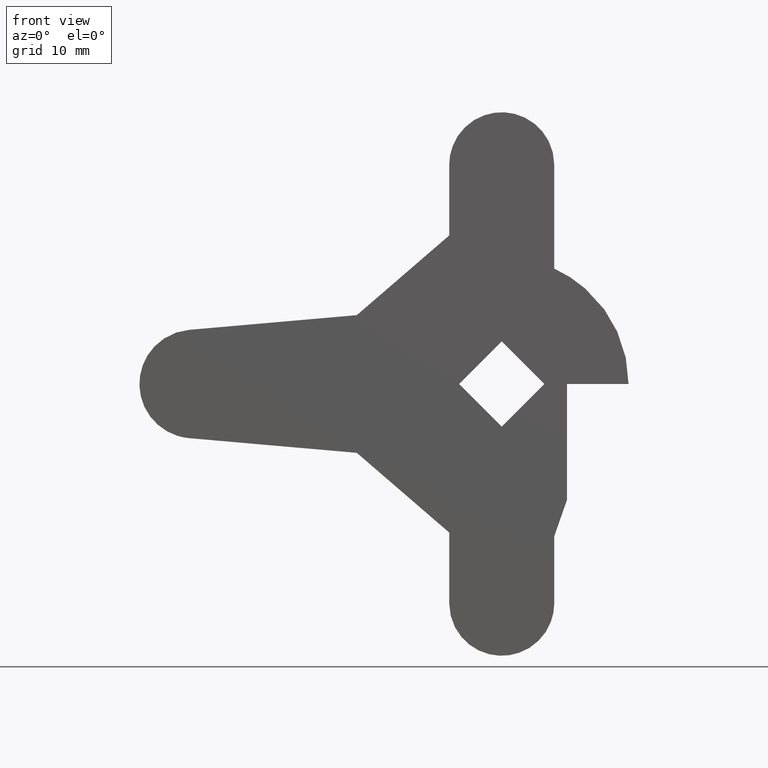
[diagram: clean part render]
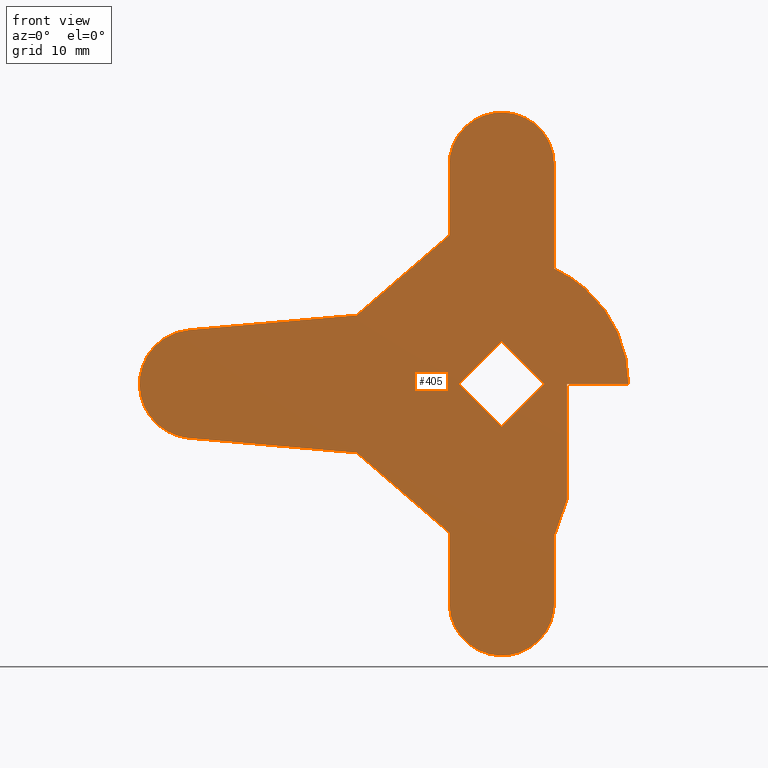
[diagram: same view with one face highlighted and labeled with its STEP entity id]
A machine part, front view. The second image highlights one B-rep face of the part: STEP entity #405.
In plain terms, the highlighted face is a freeform B-spline surface patch.
Its self-contained STEP definition (entity closure, byte-faithful):
#225=CARTESIAN_POINT('',(-53.371669325223678,-3.0,41.246249854635423));
#226=CARTESIAN_POINT('',(20.871628794602639,-3.0,41.246249854635423));
#227=CARTESIAN_POINT('',(-53.371669325223678,-3.0,-41.246251866292177));
#228=CARTESIAN_POINT('',(20.871628794602639,-3.0,-41.246251866292177));
#229=B_SPLINE_SURFACE_WITH_KNOTS('',1,1,((#225,#227),(#226,#228)),.UNSPECIFIED.,.F.,.F.,.U.,(2,2),(2,2),(0.0,74.243298119826321),(0.0,82.492501720927606),.UNSPECIFIED.);
#230=CARTESIAN_POINT('',(-7.250000000000000,-3.0,20.500000000000000));
#231=VERTEX_POINT('',#230);
#232=CARTESIAN_POINT('',(-20.0,-3.0,9.499999999999801));
#233=VERTEX_POINT('',#232);
#234=CARTESIAN_POINT('',(-7.250000000000000,-3.0,20.500000000000000));
#235=CARTESIAN_POINT('',(-20.0,-3.0,9.499999999999801));
#236=QUASI_UNIFORM_CURVE('',1,(#234,#235),.UNSPECIFIED.,.F.,.U.);
#237=EDGE_CURVE('',#231,#233,#236,.T.);
#238=ORIENTED_EDGE('',*,*,#237,.T.);
#239=CARTESIAN_POINT('',(-43.154600000000002,-3.0,7.471399999999900));
#240=VERTEX_POINT('',#239);
#241=CARTESIAN_POINT('',(-20.0,-3.0,9.499999999999801));
#242=CARTESIAN_POINT('',(-43.154600000000002,-3.0,7.471399999999900));
#243=QUASI_UNIFORM_CURVE('',1,(#241,#242),.UNSPECIFIED.,.F.,.U.);
#244=EDGE_CURVE('',#233,#240,#243,.T.);
#245=ORIENTED_EDGE('',*,*,#244,.T.);
#246=CARTESIAN_POINT('',(-43.154599674777700,-3.0,-7.471400028493091));
#247=VERTEX_POINT('',#246);
#248=CARTESIAN_POINT('',(-43.154600000000002,-3.0,7.471399999999907));
#249=CARTESIAN_POINT('',(-50.000041887174163,-2.999999999999999,6.871663299200882));
#250=CARTESIAN_POINT('',(-50.000041737615973,-3.0,-0.000000163234088));
#251=CARTESIAN_POINT('',(-50.000041588057769,-2.999999999999999,-6.871663625669059));
#252=CARTESIAN_POINT('',(-43.154599674777700,-3.0,-7.471400028493090));
#260=(BOUNDED_CURVE()B_SPLINE_CURVE(2,(#248,#249,#250,#251,#252),.UNSPECIFIED.,.F.,.U.)B_SPLINE_CURVE_WITH_KNOTS((3,2,3),(0.0,0.500000000000000,1.0),.UNSPECIFIED.)CURVE()GEOMETRIC_REPRESENTATION_ITEM()RATIONAL_B_SPLINE_CURVE((1.0,0.737318372285746,1.0,0.737318372285746,1.0))REPRESENTATION_ITEM(''));
#261=EDGE_CURVE('',#240,#247,#260,.T.);
#262=ORIENTED_EDGE('',*,*,#261,.T.);
#263=CARTESIAN_POINT('',(-20.0,-3.0,-9.500000000000000));
#264=VERTEX_POINT('',#263);
#265=CARTESIAN_POINT('',(-43.154599674777700,-3.0,-7.471400028493091));
#266=CARTESIAN_POINT('',(-20.0,-3.0,-9.500000000000000));
#267=QUASI_UNIFORM_CURVE('',1,(#265,#266),.UNSPECIFIED.,.F.,.U.);
#268=EDGE_CURVE('',#247,#264,#267,.T.);
#269=ORIENTED_EDGE('',*,*,#268,.T.);
#270=CARTESIAN_POINT('',(-7.250000000000000,-3.0,-20.500000000000000));
#271=VERTEX_POINT('',#270);
#272=CARTESIAN_POINT('',(-20.0,-3.0,-9.500000000000000));
#273=CARTESIAN_POINT('',(-7.250000000000000,-3.0,-20.500000000000000));
#274=QUASI_UNIFORM_CURVE('',1,(#272,#273),.UNSPECIFIED.,.F.,.U.);
#275=EDGE_CURVE('',#264,#271,#274,.T.);
#276=ORIENTED_EDGE('',*,*,#275,.T.);
#277=CARTESIAN_POINT('',(-7.250000000000000,-3.0,-30.250000000000000));
#278=VERTEX_POINT('',#277);
#279=CARTESIAN_POINT('',(-7.250000000000000,-3.0,-20.500000000000000));
#280=CARTESIAN_POINT('',(-7.250000000000000,-3.0,-30.250000000000000));
#281=QUASI_UNIFORM_CURVE('',1,(#279,#280),.UNSPECIFIED.,.F.,.U.);
#282=EDGE_CURVE('',#271,#278,#281,.T.);
#283=ORIENTED_EDGE('',*,*,#282,.T.);
#284=CARTESIAN_POINT('',(7.250000000000000,-3.0,-30.250000000000000));
#285=VERTEX_POINT('',#284);
#286=CARTESIAN_POINT('',(-7.250000000000000,-3.0,-30.250000000000000));
#287=CARTESIAN_POINT('',(-7.250000000000000,-3.0,-37.499999999999993));
#288=CARTESIAN_POINT('',(0.0,-3.0,-37.500000000000000));
#289=CARTESIAN_POINT('',(7.250000000000000,-3.0,-37.499999999999993));
#290=CARTESIAN_POINT('',(7.250000000000000,-3.0,-30.250000000000000));
#298=(BOUNDED_CURVE()B_SPLINE_CURVE(2,(#286,#287,#288,#289,#290),.UNSPECIFIED.,.F.,.U.)B_SPLINE_CURVE_WITH_KNOTS((3,2,3),(0.0,0.500000000000000,1.0),.UNSPECIFIED.)CURVE()GEOMETRIC_REPRESENTATION_ITEM()RATIONAL_B_SPLINE_CURVE((1.0,0.707106781186548,1.0,0.707106781186548,1.0))REPRESENTATION_ITEM(''));
#299=EDGE_CURVE('',#278,#285,#298,.T.);
#300=ORIENTED_EDGE('',*,*,#299,.T.);
#301=CARTESIAN_POINT('',(7.249999999999901,-3.0,-21.0));
#302=VERTEX_POINT('',#301);
#303=CARTESIAN_POINT('',(7.250000000000000,-3.0,-30.250000000000000));
#304=CARTESIAN_POINT('',(7.249999999999901,-3.0,-21.0));
#305=QUASI_UNIFORM_CURVE('',1,(#303,#304),.UNSPECIFIED.,.F.,.U.);
#306=EDGE_CURVE('',#285,#302,#305,.T.);
#307=ORIENTED_EDGE('',*,*,#306,.T.);
#308=CARTESIAN_POINT('',(9.0,-3.0,-16.0));
#309=VERTEX_POINT('',#308);
#310=CARTESIAN_POINT('',(7.249999999999901,-3.0,-21.0));
#311=CARTESIAN_POINT('',(9.0,-3.0,-16.0));
#312=QUASI_UNIFORM_CURVE('',1,(#310,#311),.UNSPECIFIED.,.F.,.U.);
#313=EDGE_CURVE('',#302,#309,#312,.T.);
#314=ORIENTED_EDGE('',*,*,#313,.T.);
#315=CARTESIAN_POINT('',(9.0,-3.0,0.0));
#316=VERTEX_POINT('',#315);
#317=CARTESIAN_POINT('',(9.0,-3.0,-16.0));
#318=CARTESIAN_POINT('',(9.0,-3.0,0.0));
#319=QUASI_UNIFORM_CURVE('',1,(#317,#318),.UNSPECIFIED.,.F.,.U.);
#320=EDGE_CURVE('',#309,#316,#319,.T.);
#321=ORIENTED_EDGE('',*,*,#320,.T.);
#322=CARTESIAN_POINT('',(17.500000000000000,-3.0,0.0));
#323=VERTEX_POINT('',#322);
#324=CARTESIAN_POINT('',(9.0,-3.0,0.0));
#325=CARTESIAN_POINT('',(17.500000000000000,-3.0,0.0));
#326=QUASI_UNIFORM_CURVE('',1,(#324,#325),.UNSPECIFIED.,.F.,.U.);
#327=EDGE_CURVE('',#316,#323,#326,.T.);
#328=ORIENTED_EDGE('',*,*,#327,.T.);
#329=CARTESIAN_POINT('',(7.249999999999901,-3.0,15.927570436196500));
#330=VERTEX_POINT('',#329);
#331=CARTESIAN_POINT('',(17.500000000000000,-3.0,0.0));
#332=CARTESIAN_POINT('',(17.500000000000000,-3.000000000000000,11.261918490240001));
#333=CARTESIAN_POINT('',(7.249999999999916,-3.0,15.927570436196520));
#341=(BOUNDED_CURVE()B_SPLINE_CURVE(2,(#331,#332,#333),.UNSPECIFIED.,.F.,.U.)CURVE()GEOMETRIC_REPRESENTATION_ITEM()QUASI_UNIFORM_CURVE()RATIONAL_B_SPLINE_CURVE((1.0,0.840917865872081,1.0))REPRESENTATION_ITEM(''));
#342=EDGE_CURVE('',#323,#330,#341,.T.);
#343=ORIENTED_EDGE('',*,*,#342,.T.);
#344=CARTESIAN_POINT('',(7.249999999999901,-3.0,30.250000000000000));
#345=VERTEX_POINT('',#344);
#346=CARTESIAN_POINT('',(7.249999999999901,-3.0,15.927570436196500));
#347=CARTESIAN_POINT('',(7.249999999999901,-3.0,30.250000000000000));
#348=QUASI_UNIFORM_CURVE('',1,(#346,#347),.UNSPECIFIED.,.F.,.U.);
#349=EDGE_CURVE('',#330,#345,#348,.T.);
#350=ORIENTED_EDGE('',*,*,#349,.T.);
#351=CARTESIAN_POINT('',(-7.250000000000000,-3.0,30.250000000000000));
#352=VERTEX_POINT('',#351);
#353=CARTESIAN_POINT('',(7.249999999999901,-3.0,30.250000000000000));
#354=CARTESIAN_POINT('',(7.250000000000000,-3.0,37.499999999999993));
#355=CARTESIAN_POINT('',(0.0,-3.0,37.500000000000000));
#356=CARTESIAN_POINT('',(-7.250000000000000,-3.0,37.499999999999993));
#357=CARTESIAN_POINT('',(-7.250000000000000,-3.0,30.250000000000000));
#365=(BOUNDED_CURVE()B_SPLINE_CURVE(2,(#353,#354,#355,#356,#357),.UNSPECIFIED.,.F.,.U.)B_SPLINE_CURVE_WITH_KNOTS((3,2,3),(0.0,0.500000000000000,1.0),.UNSPECIFIED.)CURVE()GEOMETRIC_REPRESENTATION_ITEM()RATIONAL_B_SPLINE_CURVE((1.0,0.707106781186548,1.0,0.707106781186548,1.0))REPRESENTATION_ITEM(''));
#366=EDGE_CURVE('',#345,#352,#365,.T.);
#367=ORIENTED_EDGE('',*,*,#366,.T.);
#368=CARTESIAN_POINT('',(-7.250000000000000,-3.0,30.250000000000000));
#369=CARTESIAN_POINT('',(-7.250000000000000,-3.0,20.500000000000000));
#370=QUASI_UNIFORM_CURVE('',1,(#368,#369),.UNSPECIFIED.,.F.,.U.);
#371=EDGE_CURVE('',#352,#231,#370,.T.);
#372=ORIENTED_EDGE('',*,*,#371,.T.);
#373=EDGE_LOOP('',(#238,#245,#262,#269,#276,#283,#300,#307,#314,#321,#328,#343,#350,#367,#372));
#374=FACE_OUTER_BOUND('',#373,.T.);
#375=CARTESIAN_POINT('',(5.868999999999900,-3.0,0.0));
#376=VERTEX_POINT('',#375);
#377=CARTESIAN_POINT('',(0.0,-3.0,-5.869000000000000));
#378=VERTEX_POINT('',#377);
#379=CARTESIAN_POINT('',(5.868999999999900,-3.0,0.0));
#380=CARTESIAN_POINT('',(0.0,-3.0,-5.869000000000000));
#381=QUASI_UNIFORM_CURVE('',1,(#379,#380),.UNSPECIFIED.,.F.,.U.);
#382=EDGE_CURVE('',#376,#378,#381,.T.);
#383=ORIENTED_EDGE('',*,*,#382,.T.);
#384=CARTESIAN_POINT('',(-5.869000000000000,-3.0,0.0));
#385=VERTEX_POINT('',#384);
#386=CARTESIAN_POINT('',(0.0,-3.0,-5.869000000000000));
#387=CARTESIAN_POINT('',(-5.869000000000000,-3.0,0.0));
#388=QUASI_UNIFORM_CURVE('',1,(#386,#387),.UNSPECIFIED.,.F.,.U.);
#389=EDGE_CURVE('',#378,#385,#388,.T.);
#390=ORIENTED_EDGE('',*,*,#389,.T.);
#391=CARTESIAN_POINT('',(0.0,-3.0,5.869000000000000));
#392=VERTEX_POINT('',#391);
#393=CARTESIAN_POINT('',(-5.869000000000000,-3.0,0.0));
#394=CARTESIAN_POINT('',(0.0,-3.0,5.869000000000000));
#395=QUASI_UNIFORM_CURVE('',1,(#393,#394),.UNSPECIFIED.,.F.,.U.);
#396=EDGE_CURVE('',#385,#392,#395,.T.);
#397=ORIENTED_EDGE('',*,*,#396,.T.);
#398=CARTESIAN_POINT('',(0.0,-3.0,5.869000000000000));
#399=CARTESIAN_POINT('',(5.868999999999900,-3.0,0.0));
#400=QUASI_UNIFORM_CURVE('',1,(#398,#399),.UNSPECIFIED.,.F.,.U.);
#401=EDGE_CURVE('',#392,#376,#400,.T.);
#402=ORIENTED_EDGE('',*,*,#401,.T.);
#403=EDGE_LOOP('',(#383,#390,#397,#402));
#404=FACE_BOUND('',#403,.T.);
#405=ADVANCED_FACE('',(#374,#404),#229,.F.);